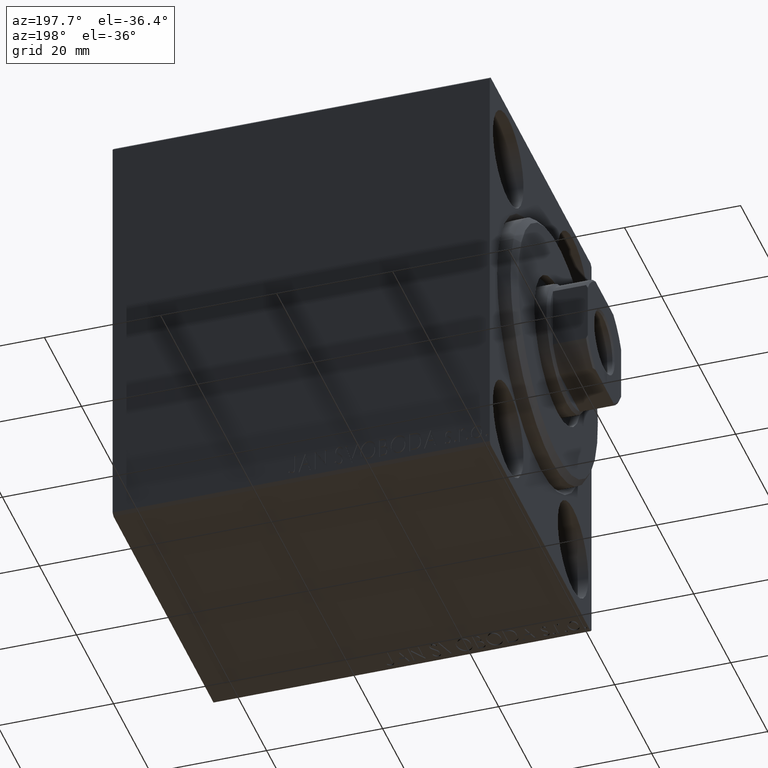
[diagram: clean part render]
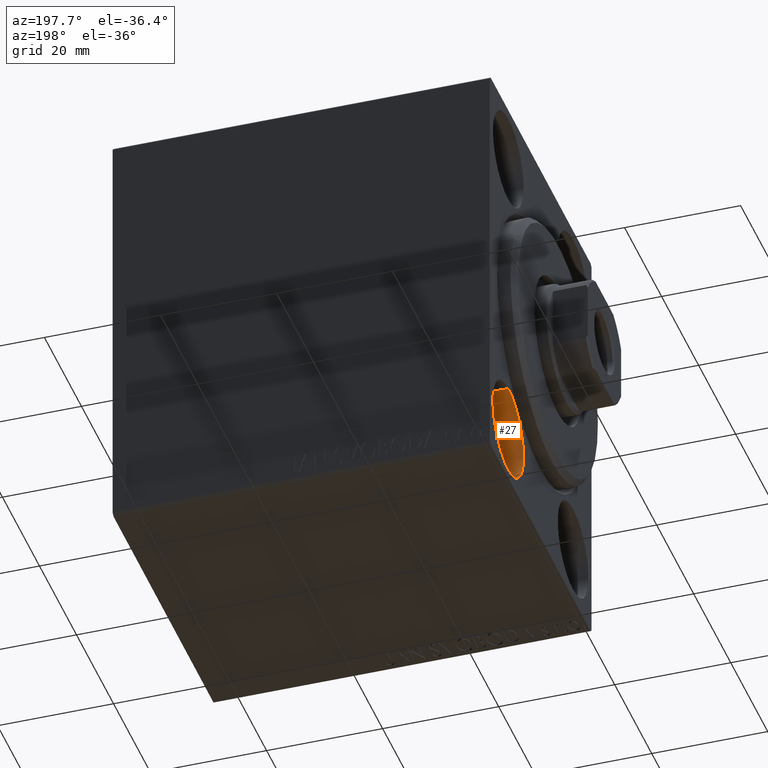
[diagram: same view with one face highlighted and labeled with its STEP entity id]
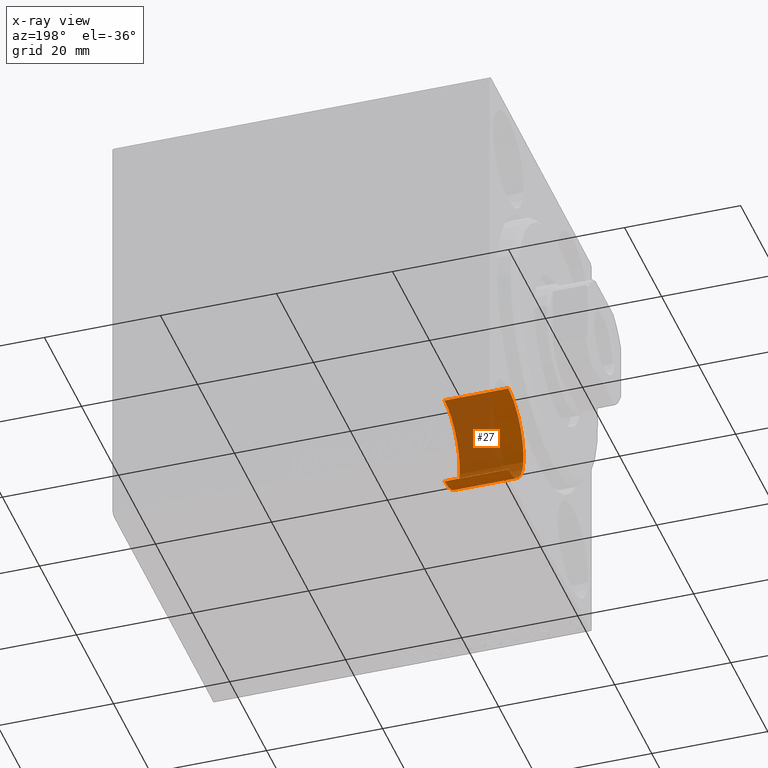
[diagram: x-ray of the same camera — body ghosted, the highlighted face saturated]
A machine part, auxiliary view. The second image highlights one B-rep face of the part: STEP entity #27.
The next image is the same camera in x-ray: the body ghosted, the highlighted face saturated — about 52% of this face is hidden behind the body in this view.
In plain terms, the highlighted cylindrical surface (partial cylindrical patch) has radius 8.25 mm, axis along (-1, -0, -0).
Its self-contained STEP definition (entity closure, byte-faithful):
#27 = ADVANCED_FACE ( 'NONE', ( #32999 ), #8553, .F. ) ;
#398 = AXIS2_PLACEMENT_3D ( 'NONE', #35435, #36514, #6558 ) ;
#1955 = EDGE_CURVE ( 'NONE', #23663, #18995, #4629, .T. ) ;
#2834 = VERTEX_POINT ( 'NONE', #28699 ) ;
#3114 = DIRECTION ( 'NONE',  ( -1.000000000000000000, 0.000000000000000000, 0.000000000000000000 ) ) ;
#4629 = CIRCLE ( 'NONE', #29977, 8.250000000000000000 ) ;
#4982 = DIRECTION ( 'NONE',  ( 0.000000000000000000, 0.000000000000000000, 1.000000000000000000 ) ) ;
#5174 = ORIENTED_EDGE ( 'NONE', *, *, #25694, .F. ) ;
#5978 = DIRECTION ( 'NONE',  ( -1.000000000000000000, -0.000000000000000000, -0.000000000000000000 ) ) ;
#6558 = DIRECTION ( 'NONE',  ( 0.000000000000000000, 0.000000000000000000, 1.000000000000000000 ) ) ;
#7963 = CIRCLE ( 'NONE', #41717, 8.250000000000000000 ) ;
#8553 = CYLINDRICAL_SURFACE ( 'NONE', #398, 8.250000000000000000 ) ;
#9957 = CARTESIAN_POINT ( 'NONE',  ( 11.00000000000000000, 17.49999999999999645, -19.25000000000000355 ) ) ;
#14479 = CARTESIAN_POINT ( 'NONE',  ( 11.00000000000000000, 17.49999999999999645, -35.75000000000000711 ) ) ;
#16298 = EDGE_LOOP ( 'NONE', ( #36044, #34762, #40771, #5174 ) ) ;
#18224 = DIRECTION ( 'NONE',  ( -1.000000000000000000, -0.000000000000000000, -0.000000000000000000 ) ) ;
#18520 = VECTOR ( 'NONE', #18224, 1000.000000000000000 ) ;
#18995 = VERTEX_POINT ( 'NONE', #31531 ) ;
#19438 = LINE ( 'NONE', #9957, #26953 ) ;
#22868 = CARTESIAN_POINT ( 'NONE',  ( 11.00000000000000000, 17.49999999999999645, -35.75000000000000711 ) ) ;
#23663 = VERTEX_POINT ( 'NONE', #22868 ) ;
#24612 = LINE ( 'NONE', #14479, #18520 ) ;
#25694 = EDGE_CURVE ( 'NONE', #18995, #38641, #19438, .T. ) ;
#26947 = EDGE_CURVE ( 'NONE', #23663, #2834, #24612, .T. ) ;
#26953 = VECTOR ( 'NONE', #5978, 1000.000000000000000 ) ;
#27013 = EDGE_CURVE ( 'NONE', #2834, #38641, #7963, .T. ) ;
#27707 = DIRECTION ( 'NONE',  ( -1.000000000000000000, 0.000000000000000000, 0.000000000000000000 ) ) ;
#28699 = CARTESIAN_POINT ( 'NONE',  ( 0.000000000000000000, 17.49999999999999645, -35.75000000000000711 ) ) ;
#29977 = AXIS2_PLACEMENT_3D ( 'NONE', #33090, #3114, #39466 ) ;
#31531 = CARTESIAN_POINT ( 'NONE',  ( 11.00000000000000000, 17.49999999999999645, -19.25000000000000355 ) ) ;
#32999 = FACE_OUTER_BOUND ( 'NONE', #16298, .T. ) ;
#33090 = CARTESIAN_POINT ( 'NONE',  ( 11.00000000000000000, 17.49999999999999645, -27.50000000000000355 ) ) ;
#34762 = ORIENTED_EDGE ( 'NONE', *, *, #26947, .T. ) ;
#35435 = CARTESIAN_POINT ( 'NONE',  ( 11.00000000000000000, 17.49999999999999645, -27.50000000000000355 ) ) ;
#36044 = ORIENTED_EDGE ( 'NONE', *, *, #1955, .F. ) ;
#36514 = DIRECTION ( 'NONE',  ( -1.000000000000000000, -0.000000000000000000, -0.000000000000000000 ) ) ;
#38641 = VERTEX_POINT ( 'NONE', #41387 ) ;
#39466 = DIRECTION ( 'NONE',  ( 0.000000000000000000, 0.000000000000000000, 1.000000000000000000 ) ) ;
#40771 = ORIENTED_EDGE ( 'NONE', *, *, #27013, .T. ) ;
#41387 = CARTESIAN_POINT ( 'NONE',  ( 0.000000000000000000, 17.49999999999999645, -19.25000000000000355 ) ) ;
#41717 = AXIS2_PLACEMENT_3D ( 'NONE', #41784, #27707, #4982 ) ;
#41784 = CARTESIAN_POINT ( 'NONE',  ( 0.000000000000000000, 17.49999999999999645, -27.50000000000000355 ) ) ;